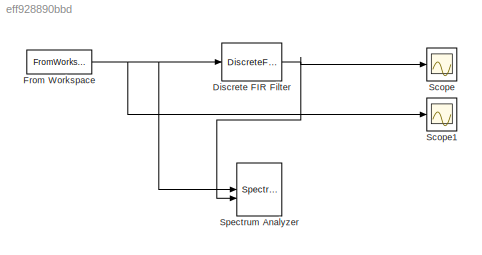
MODEL slx_eff928890bbd
KIND model
CONFIG AbsTol = auto
CONFIG EnableMultiTasking = off
CONFIG FixedStep = auto
CONFIG MaxStep = 1e-3
CONFIG MinStep = auto
CONFIG RelTol = 1e-3
CONFIG SampleTimeConstraint = Unconstrained
CONFIG SolverName = VariableStepAuto
CONFIG StartTime = 0.0
CONFIG StopTime = 1
BLOCK [DiscreteFir] Discrete FIR Filter
  Coefficients = b_int
  InputPortMap = u0
  OutputPortMap = o0
BLOCK [FromWorkspace] From Workspace
  SampleTime = -1
  VariableName = simin
BLOCK [Scope] Scope
  Floating = off
  NumInputPorts = 2
  ScopeSpecificationString = Simulink.scopes.TimeScopeBlockCfg('CurrentConfiguration', extmgr.ConfigurationSet(extmgr.Configuration('Core','General UI',true),extmgr.Configuration('Core','Source UI',true),extmgr.Configuration('Sources','WiredSimulink',true),extmgr.Configuration('Visuals','Time Domain',true,'SerializedDisplays',{struct('MinYLimReal','-50844.01275','MaxYLimReal','51592.66435','YLabelReal','','MinYLimMag','   0.0...<+1436ch>
BLOCK [Scope] Scope1
  Floating = off
  NumInputPorts = 2
  ScopeSpecificationString = Simulink.scopes.TimeScopeBlockCfg('CurrentConfiguration', extmgr.ConfigurationSet(extmgr.Configuration('Core','General UI',true),extmgr.Configuration('Core','Source UI',true),extmgr.Configuration('Sources','WiredSimulink',true,'DataLoggingVariableName','ScopeData1'),extmgr.Configuration('Visuals','Time Domain',true,'SerializedDisplays',{struct('MinYLimReal','-2.37764','MaxYLimReal','2.37764','YLab...<+1440ch>
BLOCK [SpectrumAnalyzer] Spectrum Analyzer
  CenterFrequency = 125
  GraphicalSettings = {"GraphicalSettings":{"Style":{"BackgroundColor":[0.12941176470588237,0.12941176470588237,0.12941176470588237],"AxesColor":[0.07058823529411765,0.07058823529411765,0.07058823529411765],"LabelsColor":[0.8509803921568627,0.8509803921568627,0.8509803921568627],"PreserveColors":false,"Visible":[true,true,true,true,true,true,true],"LineStyle":["-","-","-","-","-","-","-"],"LineColor":[[1,1,0.0666666666...<+1308ch>
  NumInputPorts = 2
  OpenAtSimulationStart = off
  PlotAsTwoSidedSpectrum = off
  SampleRate = 500
  ScopeFrameLocation = window
  Span = 250
  StartFrequency = 0
  StopFrequency = 250
  WasSavedAsWebScope = on
  WindowPosition = [320.000000,200.000000,800.000000,500.000000,]
  YLimits = [-184.8632191,50.52365506]
NET Discrete FIR Filter:1 -> Scope:1, Spectrum Analyzer:2
NET From Workspace:1 -> Discrete FIR Filter:1, Scope1:1, Spectrum Analyzer:1
note: NET lines group one-source signal fan-out (src -> all destinations, sorted); 1:1 wires keep LINE
